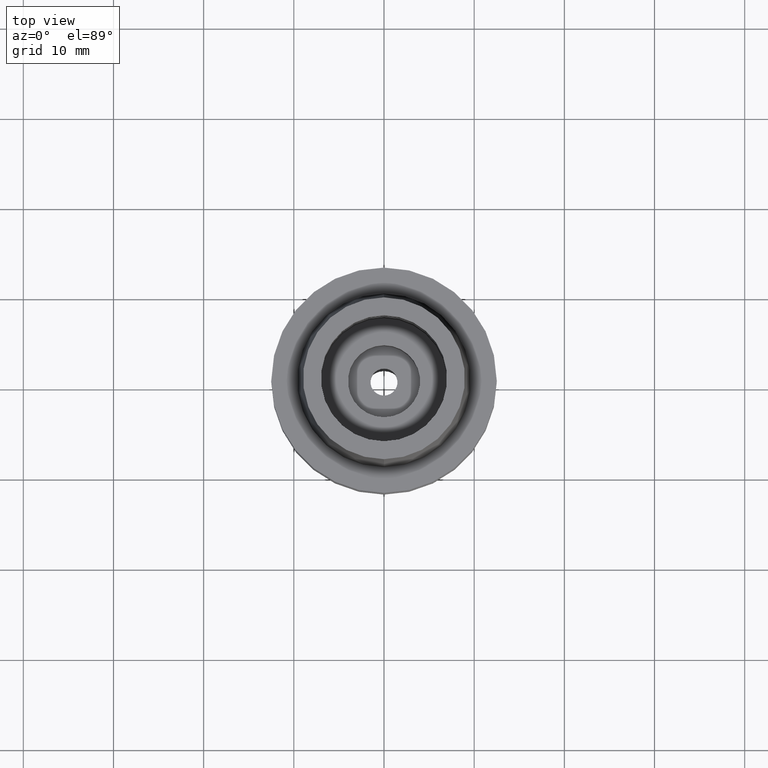
[diagram: clean part render]
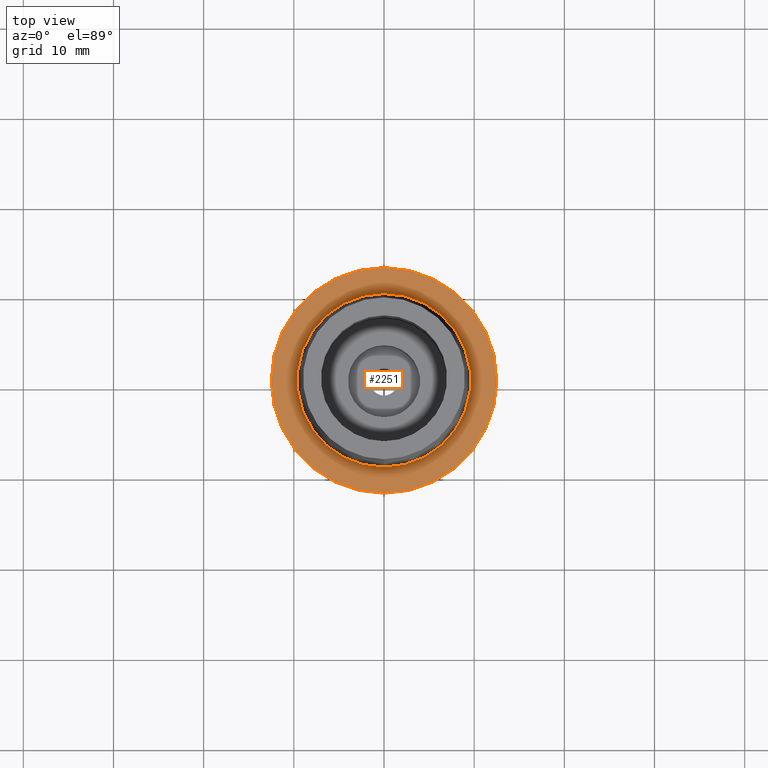
[diagram: same view with one face highlighted and labeled with its STEP entity id]
A machine part, top view. The second image highlights one B-rep face of the part: STEP entity #2251.
In plain terms, the highlighted planar face has unit normal (0, 0, 1).
Its self-contained STEP definition (entity closure, byte-faithful):
#34 = DIRECTION ( 'NONE',  ( 0.0000000000000000000, 1.000000000000000000, 0.0000000000000000000 ) ) ;
#113 = FACE_OUTER_BOUND ( 'NONE', #1208, .T. ) ;
#140 = AXIS2_PLACEMENT_3D ( 'NONE', #655, #1112, #665 ) ;
#176 = CARTESIAN_POINT ( 'NONE',  ( 0.0000000000000000000, 9.624999771398000448, 1.332267629550000037E-13 ) ) ;
#198 = EDGE_CURVE ( 'NONE', #1986, #2028, #2572, .T. ) ;
#201 = CARTESIAN_POINT ( 'NONE',  ( 0.0000000000000000000, 0.0000000000000000000, 2.557953848736000191E-13 ) ) ;
#306 = EDGE_LOOP ( 'NONE', ( #772, #683 ) ) ;
#307 = PLANE ( 'NONE',  #403 ) ;
#403 = AXIS2_PLACEMENT_3D ( 'NONE', #2193, #1969, #734 ) ;
#559 = AXIS2_PLACEMENT_3D ( 'NONE', #201, #855, #1091 ) ;
#628 = ORIENTED_EDGE ( 'NONE', *, *, #198, .F. ) ;
#655 = CARTESIAN_POINT ( 'NONE',  ( 0.0000000000000000000, 0.0000000000000000000, -5.684341886080998387E-14 ) ) ;
#665 = DIRECTION ( 'NONE',  ( 0.0000000000000000000, -1.000000000000000000, 0.0000000000000000000 ) ) ;
#683 = ORIENTED_EDGE ( 'NONE', *, *, #2575, .F. ) ;
#734 = DIRECTION ( 'NONE',  ( 1.000000000000000000, 0.0000000000000000000, 0.0000000000000000000 ) ) ;
#772 = ORIENTED_EDGE ( 'NONE', *, *, #1434, .F. ) ;
#800 = CIRCLE ( 'NONE', #1702, 9.624999771398000448 ) ;
#855 = DIRECTION ( 'NONE',  ( 0.0000000000000000000, 0.0000000000000000000, 1.000000000000000000 ) ) ;
#1052 = DIRECTION ( 'NONE',  ( 0.0000000000000000000, 0.0000000000000000000, -1.000000000000000000 ) ) ;
#1065 = CARTESIAN_POINT ( 'NONE',  ( 0.0000000000000000000, -9.624999771398000448, 1.332267629550000037E-13 ) ) ;
#1091 = DIRECTION ( 'NONE',  ( 0.0000000000000000000, 1.000000000000000000, 0.0000000000000000000 ) ) ;
#1112 = DIRECTION ( 'NONE',  ( 0.0000000000000000000, 0.0000000000000000000, -1.000000000000000000 ) ) ;
#1208 = EDGE_LOOP ( 'NONE', ( #1694, #628 ) ) ;
#1320 = CARTESIAN_POINT ( 'NONE',  ( 0.0000000000000000000, -12.50000000000000000, -5.684341886080998387E-14 ) ) ;
#1434 = EDGE_CURVE ( 'NONE', #1981, #1574, #1636, .T. ) ;
#1544 = DIRECTION ( 'NONE',  ( 0.0000000000000000000, -1.000000000000000000, 0.0000000000000000000 ) ) ;
#1549 = FACE_BOUND ( 'NONE', #306, .T. ) ;
#1574 = VERTEX_POINT ( 'NONE', #1065 ) ;
#1587 = EDGE_CURVE ( 'NONE', #2028, #1986, #1932, .T. ) ;
#1636 = CIRCLE ( 'NONE', #559, 9.624999771398000448 ) ;
#1694 = ORIENTED_EDGE ( 'NONE', *, *, #1587, .F. ) ;
#1702 = AXIS2_PLACEMENT_3D ( 'NONE', #2528, #2350, #1544 ) ;
#1903 = CARTESIAN_POINT ( 'NONE',  ( 0.0000000000000000000, 0.0000000000000000000, -5.684341886080998387E-14 ) ) ;
#1932 = CIRCLE ( 'NONE', #2410, 12.50000000000000000 ) ;
#1969 = DIRECTION ( 'NONE',  ( 0.0000000000000000000, 0.0000000000000000000, 1.000000000000000000 ) ) ;
#1981 = VERTEX_POINT ( 'NONE', #176 ) ;
#1986 = VERTEX_POINT ( 'NONE', #1320 ) ;
#2028 = VERTEX_POINT ( 'NONE', #2345 ) ;
#2193 = CARTESIAN_POINT ( 'NONE',  ( 0.0000000000000000000, 0.0000000000000000000, 0.0000000000000000000 ) ) ;
#2251 = ADVANCED_FACE ( 'NONE', ( #113, #1549 ), #307, .T. ) ;
#2345 = CARTESIAN_POINT ( 'NONE',  ( 0.0000000000000000000, 12.50000000000000000, -5.684341886080998387E-14 ) ) ;
#2350 = DIRECTION ( 'NONE',  ( 0.0000000000000000000, 0.0000000000000000000, 1.000000000000000000 ) ) ;
#2410 = AXIS2_PLACEMENT_3D ( 'NONE', #1903, #1052, #34 ) ;
#2528 = CARTESIAN_POINT ( 'NONE',  ( 0.0000000000000000000, 0.0000000000000000000, 2.557953848736000191E-13 ) ) ;
#2572 = CIRCLE ( 'NONE', #140, 12.50000000000000000 ) ;
#2575 = EDGE_CURVE ( 'NONE', #1574, #1981, #800, .T. ) ;